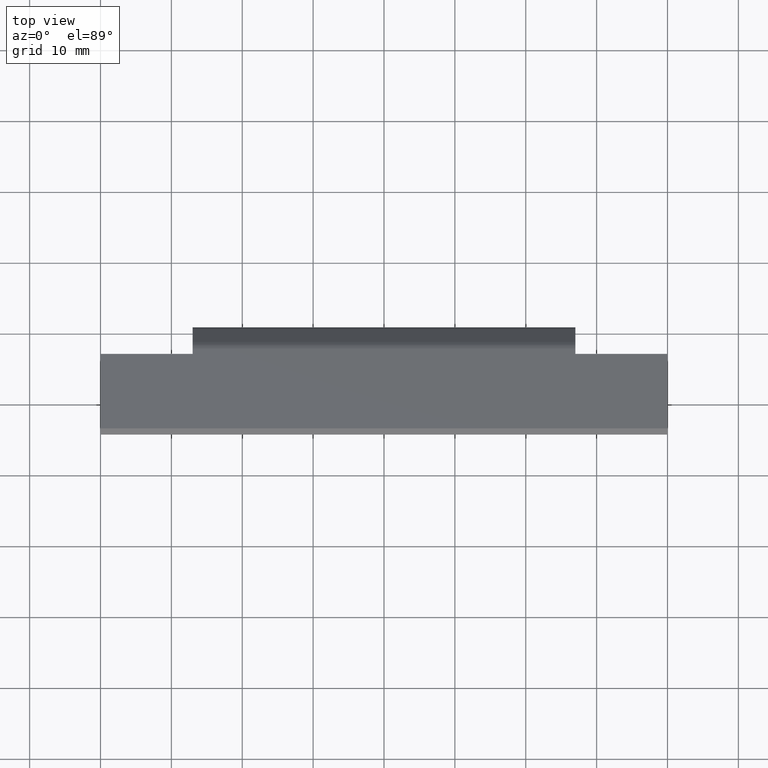
[diagram: clean part render]
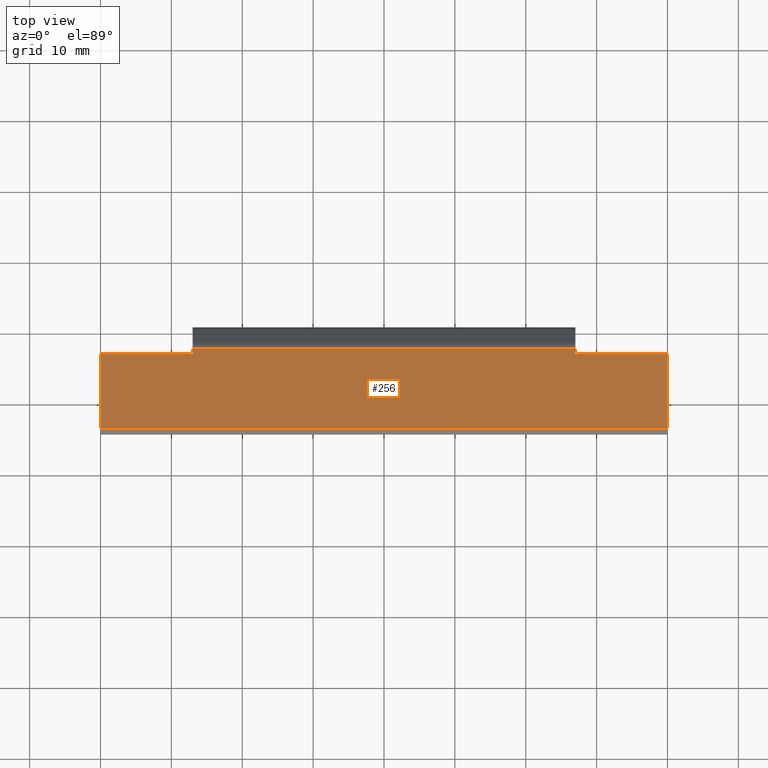
[diagram: same view with one face highlighted and labeled with its STEP entity id]
A machine part, top view. The second image highlights one B-rep face of the part: STEP entity #256.
In plain terms, the highlighted planar face has unit normal (0, 0.5736, 0.8192).
Its self-contained STEP definition (entity closure, byte-faithful):
#30 = EDGE_CURVE ( 'NONE', #1130, #1161, #735, .T. ) ;
#74 = CARTESIAN_POINT ( 'NONE',  ( 39.99999999999999300, -4.433446302416696100, -9.137108915135842200 ) ) ;
#115 = CARTESIAN_POINT ( 'NONE',  ( 27.00000000000000400, 6.215530273340212000, -16.59360258769941900 ) ) ;
#173 = ORIENTED_EDGE ( 'NONE', *, *, #1546, .T. ) ;
#235 = VECTOR ( 'NONE', #1945, 1000.000000000000100 ) ;
#256 = ADVANCED_FACE ( 'NONE', ( #392 ), #258, .T. ) ;
#258 = PLANE ( 'NONE',  #577 ) ;
#371 = DIRECTION ( 'NONE',  ( 2.569960705150825400E-016, 0.8191520442889929100, -0.5735764363510443800 ) ) ;
#384 = CARTESIAN_POINT ( 'NONE',  ( -27.00000000000000400, 6.961737956427818100, -17.11610283246736600 ) ) ;
#392 = FACE_OUTER_BOUND ( 'NONE', #1032, .T. ) ;
#424 = EDGE_CURVE ( 'NONE', #1161, #2376, #1501, .T. ) ;
#426 = EDGE_CURVE ( 'NONE', #1339, #956, #632, .T. ) ;
#459 = VECTOR ( 'NONE', #845, 1000.000000000000000 ) ;
#577 = AXIS2_PLACEMENT_3D ( 'NONE', #960, #2319, #2102 ) ;
#616 = CARTESIAN_POINT ( 'NONE',  ( -40.00000000000000000, -4.433446302416696100, -9.137108915135842200 ) ) ;
#632 = LINE ( 'NONE', #2691, #459 ) ;
#638 = LINE ( 'NONE', #74, #2472 ) ;
#689 = EDGE_CURVE ( 'NONE', #1403, #2678, #1494, .T. ) ;
#704 = VECTOR ( 'NONE', #2571, 1000.000000000000100 ) ;
#735 = LINE ( 'NONE', #2197, #1351 ) ;
#745 = VECTOR ( 'NONE', #2258, 1000.000000000000000 ) ;
#845 = DIRECTION ( 'NONE',  ( -1.000000000000000000, 0.0000000000000000000, 0.0000000000000000000 ) ) ;
#852 = EDGE_CURVE ( 'NONE', #2678, #2564, #638, .T. ) ;
#956 = VERTEX_POINT ( 'NONE', #1586 ) ;
#960 = CARTESIAN_POINT ( 'NONE',  ( 8.500000000000000000, 27.10390740270953500, -31.21980171465104800 ) ) ;
#986 = CARTESIAN_POINT ( 'NONE',  ( -27.00000000000000400, 6.215530273340212000, -16.59360258769941900 ) ) ;
#1032 = EDGE_LOOP ( 'NONE', ( #1638, #1061, #1326, #1589, #1933, #2612, #2961, #173 ) ) ;
#1061 = ORIENTED_EDGE ( 'NONE', *, *, #424, .T. ) ;
#1088 = EDGE_CURVE ( 'NONE', #2376, #1339, #2018, .T. ) ;
#1130 = VERTEX_POINT ( 'NONE', #1574 ) ;
#1161 = VERTEX_POINT ( 'NONE', #1200 ) ;
#1200 = CARTESIAN_POINT ( 'NONE',  ( 27.00000000000000400, 6.961737956427818100, -17.11610283246736600 ) ) ;
#1287 = CARTESIAN_POINT ( 'NONE',  ( 8.500000000000000000, 6.961737956427821700, -17.11610283246735900 ) ) ;
#1326 = ORIENTED_EDGE ( 'NONE', *, *, #1088, .T. ) ;
#1339 = VERTEX_POINT ( 'NONE', #986 ) ;
#1351 = VECTOR ( 'NONE', #371, 1000.000000000000100 ) ;
#1403 = VERTEX_POINT ( 'NONE', #1428 ) ;
#1428 = CARTESIAN_POINT ( 'NONE',  ( -40.00000000000000000, -4.433446302416696100, -9.137108915135842200 ) ) ;
#1434 = LINE ( 'NONE', #1750, #235 ) ;
#1494 = LINE ( 'NONE', #616, #2657 ) ;
#1501 = LINE ( 'NONE', #1287, #2224 ) ;
#1546 = EDGE_CURVE ( 'NONE', #2564, #1130, #1905, .T. ) ;
#1574 = CARTESIAN_POINT ( 'NONE',  ( 27.00000000000000400, 6.215530273340212000, -16.59360258769941900 ) ) ;
#1586 = CARTESIAN_POINT ( 'NONE',  ( -40.00000000000000000, 6.215530273340212000, -16.59360258769941900 ) ) ;
#1589 = ORIENTED_EDGE ( 'NONE', *, *, #426, .T. ) ;
#1638 = ORIENTED_EDGE ( 'NONE', *, *, #30, .T. ) ;
#1750 = CARTESIAN_POINT ( 'NONE',  ( -40.00000000000000000, 6.215530273340212000, -16.59360258769941900 ) ) ;
#1873 = EDGE_CURVE ( 'NONE', #956, #1403, #1434, .T. ) ;
#1905 = LINE ( 'NONE', #115, #745 ) ;
#1933 = ORIENTED_EDGE ( 'NONE', *, *, #1873, .T. ) ;
#1945 = DIRECTION ( 'NONE',  ( 0.0000000000000000000, -0.8191520442889929100, 0.5735764363510443800 ) ) ;
#2018 = LINE ( 'NONE', #2273, #704 ) ;
#2078 = CARTESIAN_POINT ( 'NONE',  ( 40.00000000000000000, 6.215530273340212000, -16.59360258769941900 ) ) ;
#2102 = DIRECTION ( 'NONE',  ( 0.0000000000000000000, -0.8191520442889929100, 0.5735764363510443800 ) ) ;
#2124 = CARTESIAN_POINT ( 'NONE',  ( 39.99999999999999300, -4.433446302416696100, -9.137108915135842200 ) ) ;
#2197 = CARTESIAN_POINT ( 'NONE',  ( 27.00000000000000700, 17.27408287124161400, -24.33688447843851700 ) ) ;
#2224 = VECTOR ( 'NONE', #2452, 1000.000000000000000 ) ;
#2258 = DIRECTION ( 'NONE',  ( -1.000000000000000000, 0.0000000000000000000, 0.0000000000000000000 ) ) ;
#2273 = CARTESIAN_POINT ( 'NONE',  ( -27.00000000000000700, 17.27408287124161400, -24.33688447843851700 ) ) ;
#2319 = DIRECTION ( 'NONE',  ( 0.0000000000000000000, 0.5735764363510444900, 0.8191520442889930200 ) ) ;
#2376 = VERTEX_POINT ( 'NONE', #384 ) ;
#2418 = DIRECTION ( 'NONE',  ( 1.000000000000000000, 1.387697540646982100E-019, -9.716762787160878200E-020 ) ) ;
#2452 = DIRECTION ( 'NONE',  ( -1.000000000000000000, 0.0000000000000000000, 0.0000000000000000000 ) ) ;
#2472 = VECTOR ( 'NONE', #2591, 1000.000000000000100 ) ;
#2564 = VERTEX_POINT ( 'NONE', #2078 ) ;
#2571 = DIRECTION ( 'NONE',  ( 2.569960705150825400E-016, -0.8191520442889929100, 0.5735764363510443800 ) ) ;
#2591 = DIRECTION ( 'NONE',  ( 5.337610695313252400E-016, 0.8191520442889929100, -0.5735764363510443800 ) ) ;
#2612 = ORIENTED_EDGE ( 'NONE', *, *, #689, .T. ) ;
#2657 = VECTOR ( 'NONE', #2418, 1000.000000000000000 ) ;
#2678 = VERTEX_POINT ( 'NONE', #2124 ) ;
#2691 = CARTESIAN_POINT ( 'NONE',  ( -27.00000000000000400, 6.215530273340212000, -16.59360258769941900 ) ) ;
#2961 = ORIENTED_EDGE ( 'NONE', *, *, #852, .T. ) ;